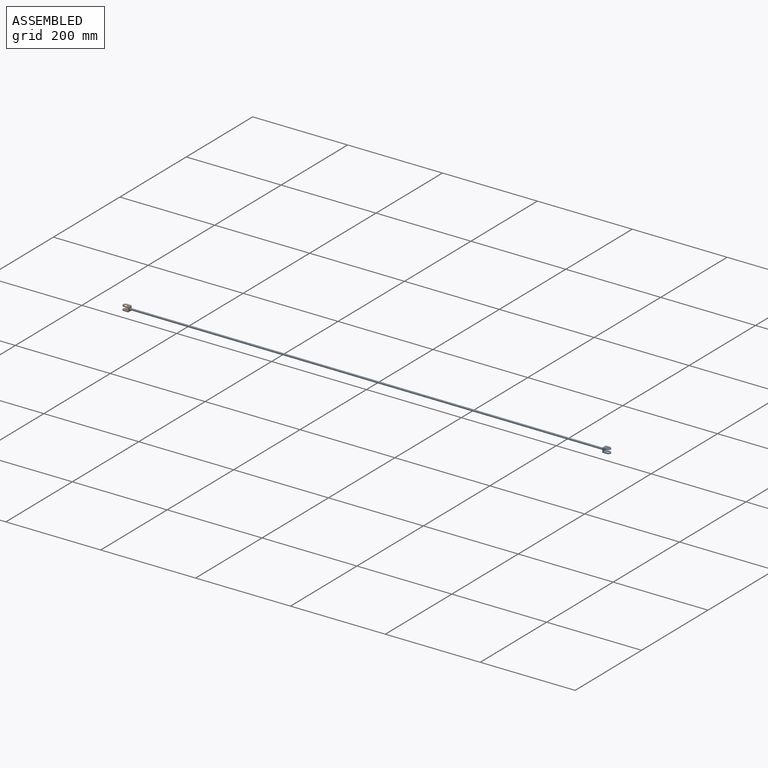
[diagram: assembled view]
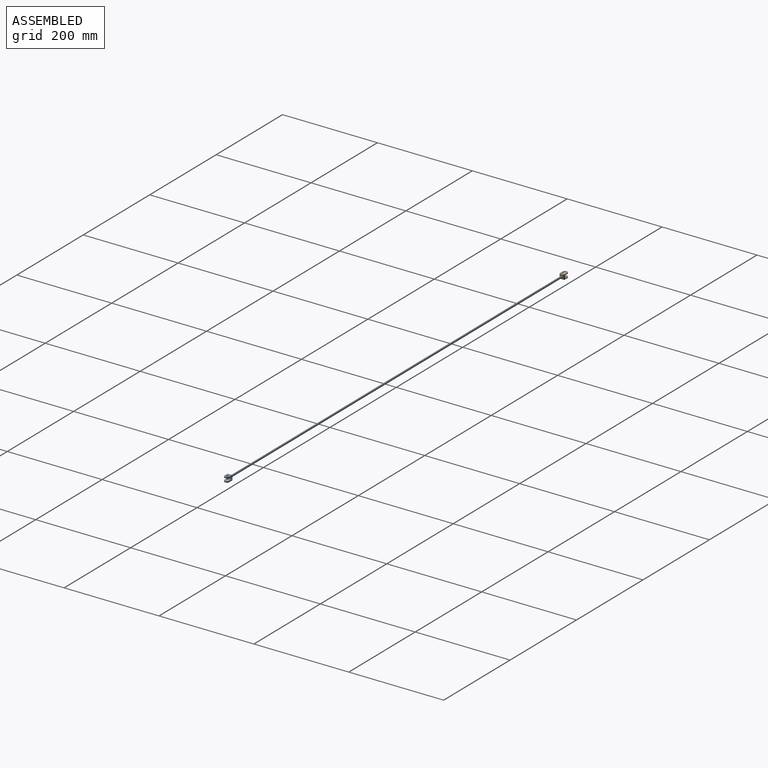
[diagram: assembled view, second angle]
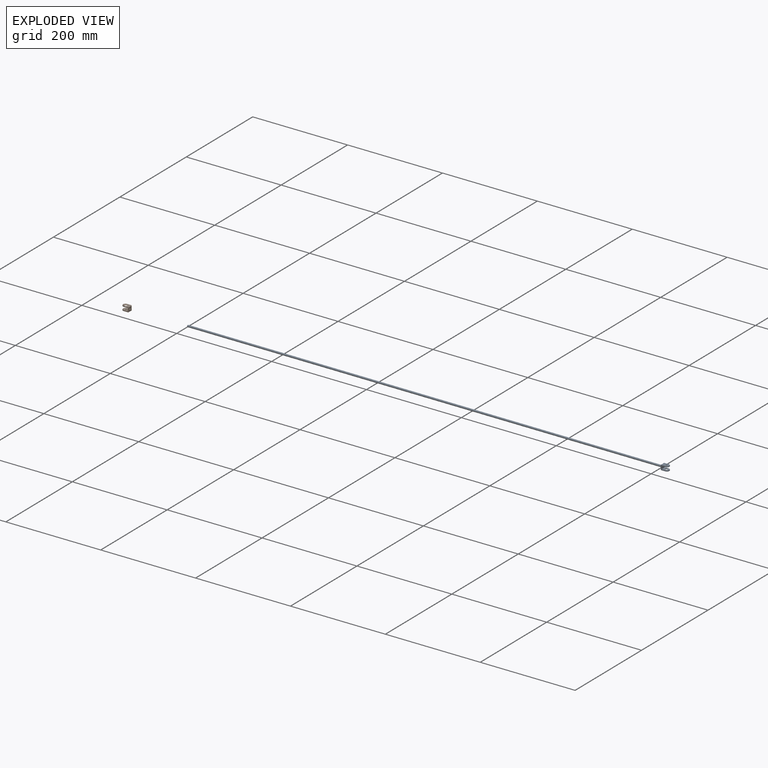
[diagram: exploded view]
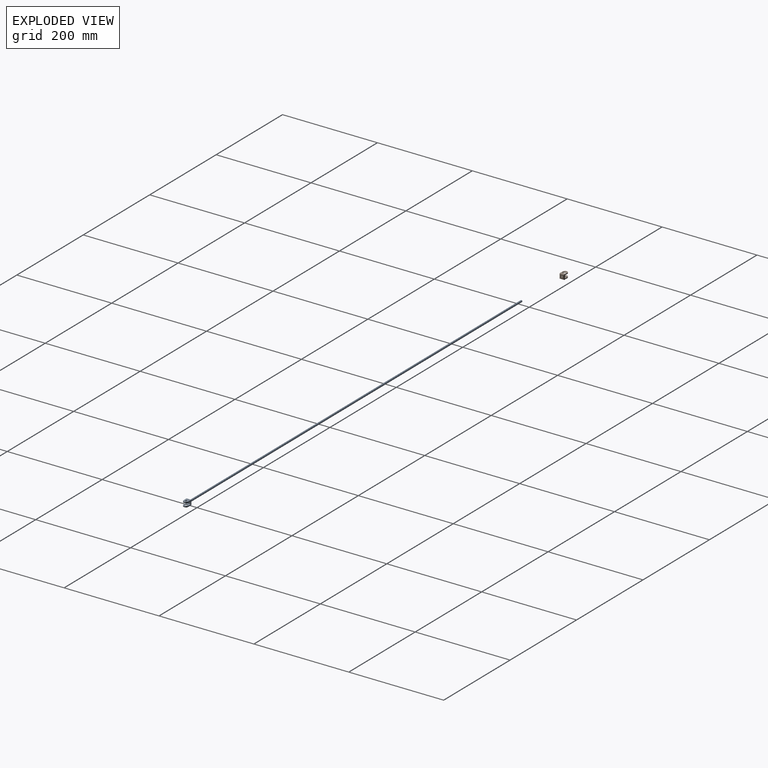
[diagram: exploded view, second angle]
ASSEMBLY  parts=2 mates=2
PART A: 18 faces, bbox 1015x10x10 mm
  f0: cylinder r=2mm len=1000mm, axis (1,0,0), area 12566.4mm2, adj f1,f3
  f1: plane 4x4mm, normal (-1,0,0), area 12.6mm2, adj f0
  f2: plane 14x10mm, normal (0,1,0), area 66.2mm2, adj f8,f9,f11,f15,f16
  f3: plane 8x8mm, normal (-1,0,0), area 51.4mm2, adj f0,f12,f13,f14,f15
  f4: plane 14x10mm, normal (0,-1,0), area 120.7mm2, adj f8,f9,f10,f12,f17
  f5: plane 13x10mm, normal (0,1,0), area 110.7mm2, adj f6,f8,f9,f10,f17
  f6: plane 10x6mm, normal (1,0,0), area 60mm2, adj f5,f7,f8,f9
  f7: plane 13x10mm, normal (0,-1,0), area 99.9mm2, adj f6,f8,f9,f11,f16
  f8: plane 10x9mm, normal (0,0,1), area 42mm2, adj f2,f4,f5,f6,f7,f10,f11,f13
  f9: plane 10x9mm, normal (0,0,-1), area 42mm2, adj f2,f4,f5,f6,f7,f10,f11,f14
  f10: cylinder r=5mm len=10mm, axis (0,-1,0), area 31.4mm2, adj f4,f5,f8,f9
  f11: cylinder r=5mm len=10mm, axis (0,-1,0), area 31.4mm2, adj f2,f7,f8,f9
  f12: cylinder r=1mm len=10mm, axis (0,0,1), area 14.6mm2, adj f3,f4,f13,f14
  f13: cylinder r=1mm len=10mm, axis (0,1,0), area 14.6mm2, adj f3,f8,f12,f15
  f14: cylinder r=1mm len=10mm, axis (0,-1,0), area 14.6mm2, adj f3,f9,f12,f15
  f15: cylinder r=1mm len=10mm, axis (0,0,1), area 14.6mm2, adj f2,f3,f13,f14
  f16: cone r=1.65mm half-angle=45deg, axis (0,1,0), area 61.8mm2, adj f2,f7
  f17: cylinder r=1.65mm len=3.3mm, axis (0,1,0), area 20.7mm2, adj f4,f5
PART B: 17 faces, bbox 10x15x10 mm
  f0: plane 14x10mm, normal (-1,0,0), area 120.7mm2, adj f6,f7,f8,f11,f15
  f1: plane 8x8mm, normal (0,-1,0), area 55.4mm2, adj f12,f13,f14,f15,f16
  f2: plane 14x10mm, normal (1,0,0), area 66.2mm2, adj f6,f7,f9,f10,f12
  f3: plane 13x10mm, normal (-1,0,0), area 99.9mm2, adj f4,f6,f7,f9,f10
  f4: plane 10x6mm, normal (0,1,0), area 51.4mm2, adj f3,f5,f6,f7,f16
  f5: plane 13x10mm, normal (1,0,0), area 110.7mm2, adj f4,f6,f7,f8,f11
  f6: plane 10x9mm, normal (0,0,1), area 42mm2, adj f0,f2,f3,f4,f5,f10,f11,f13
  f7: plane 10x9mm, normal (0,0,-1), area 42mm2, adj f0,f2,f3,f4,f5,f10,f11,f14
  f8: cylinder r=1.65mm len=3.3mm, axis (1,0,0), area 20.7mm2, adj f0,f5
  f9: cone r=1.65mm half-angle=45deg, axis (1,0,0), area 61.8mm2, adj f2,f3
  f10: cylinder r=5mm len=10mm, axis (1,0,0), area 31.4mm2, adj f2,f3,f6,f7
  f11: cylinder r=5mm len=10mm, axis (1,0,0), area 31.4mm2, adj f0,f5,f6,f7
  f12: cylinder r=1mm len=10mm, axis (0,0,-1), area 14.6mm2, adj f1,f2,f13,f14
  f13: cylinder r=1mm len=10mm, axis (-1,0,0), area 14.6mm2, adj f1,f6,f12,f15
  f14: cylinder r=1mm len=10mm, axis (1,0,0), area 14.6mm2, adj f1,f7,f12,f15
  f15: cylinder r=1mm len=10mm, axis (0,0,-1), area 14.6mm2, adj f0,f1,f13,f14
  f16: cylinder r=1.65mm len=3.3mm, axis (0,-1,0), area 20.7mm2, adj f1,f4
PLACE A rot(axis=(-1,0,0),90deg) t=(0,0,0)mm
PLACE B rot(axis=(0.58,-0.58,0.58),120deg) t=(-517.77,0,111.15)mm
MATE fastened B.f16 <-> A.f0  axis (1,0,0) through (-498,0,0)mm
MATE parallel B.f0 <-> A.f2  axis (0,0,-1) through (-499,0,-5)mm
